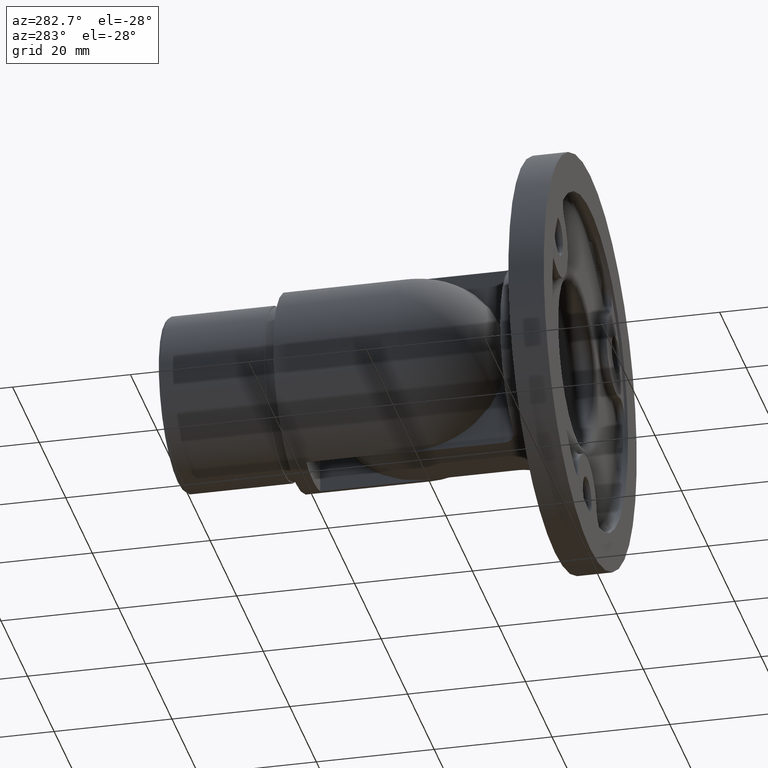
[diagram: clean part render]
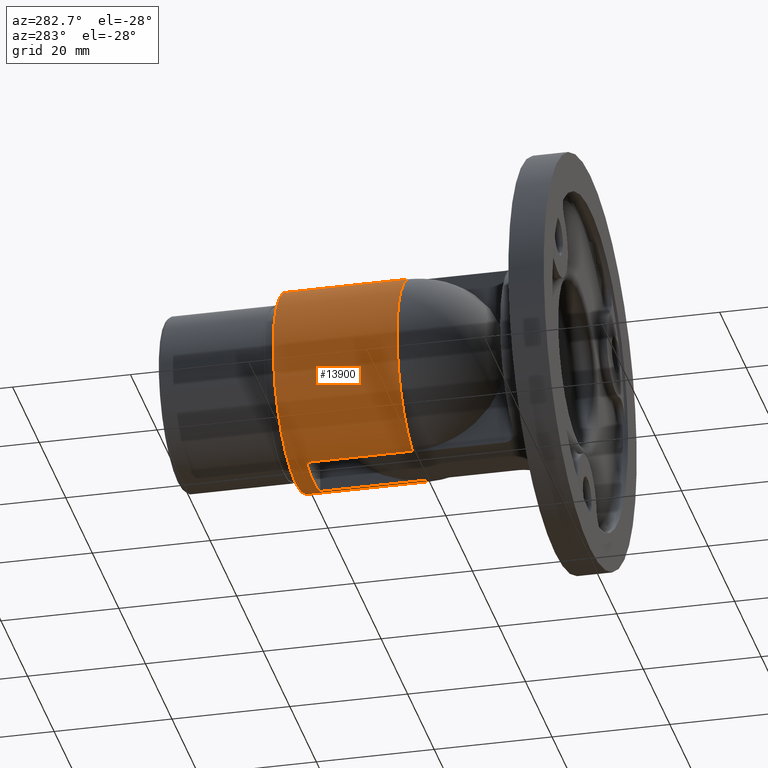
[diagram: same view with one face highlighted and labeled with its STEP entity id]
A machine part, auxiliary view. The second image highlights one B-rep face of the part: STEP entity #13900.
In plain terms, the highlighted cylindrical surface (bore or boss wall) has radius 16.85 mm, axis along (-0, -1, -0).
Its self-contained STEP definition (entity closure, byte-faithful):
#232 = CARTESIAN_POINT ( 'NONE',  ( -5.249999999999995559, 34.85000000000000853, 16.01124604770035376 ) ) ;
#285 = AXIS2_PLACEMENT_3D ( 'NONE', #11756, #676, #9355 ) ;
#428 = CARTESIAN_POINT ( 'NONE',  ( 0.000000000000000000, 37.85000000000000853, -16.85000000000000142 ) ) ;
#444 = CARTESIAN_POINT ( 'NONE',  ( -5.249999999999994671, 16.85000000000000853, -16.01124604770035376 ) ) ;
#594 = CARTESIAN_POINT ( 'NONE',  ( 0.000000000000000000, 16.85000000000000853, 0.000000000000000000 ) ) ;
#676 = DIRECTION ( 'NONE',  ( -0.000000000000000000, -1.000000000000000000, -0.000000000000000000 ) ) ;
#1087 = VECTOR ( 'NONE', #5763, 1000.000000000000000 ) ;
#1101 = CARTESIAN_POINT ( 'NONE',  ( 5.249999999999996447, 34.85000000000000853, -16.01124604770035376 ) ) ;
#1102 = CARTESIAN_POINT ( 'NONE',  ( -5.249999999999995559, 34.85000000000000853, -16.01124604770035376 ) ) ;
#1167 = EDGE_CURVE ( 'NONE', #4631, #8340, #12813, .T. ) ;
#1208 = CARTESIAN_POINT ( 'NONE',  ( 16.63825640477658396, 24.65874508683922528, 2.675813445187656292 ) ) ;
#1268 = CARTESIAN_POINT ( 'NONE',  ( 16.08063945266034267, 23.38845225511019876, 5.038138055029641293 ) ) ;
#1324 = DIRECTION ( 'NONE',  ( -0.000000000000000000, -1.000000000000000000, -0.000000000000000000 ) ) ;
#1379 = CARTESIAN_POINT ( 'NONE',  ( 14.72369132227998634, 17.95197662653187720, 8.194570433765496986 ) ) ;
#1845 = EDGE_CURVE ( 'NONE', #11782, #11782, #2283, .T. ) ;
#2072 = CARTESIAN_POINT ( 'NONE',  ( 5.250000000000005329, 16.85000000000000853, -16.01124604770035020 ) ) ;
#2178 = LINE ( 'NONE', #6695, #4668 ) ;
#2269 = CARTESIAN_POINT ( 'NONE',  ( 16.85019765389074209, 25.10040369344974565, 0.2620014252942243216 ) ) ;
#2283 = CIRCLE ( 'NONE', #12553, 16.85000000000000142 ) ;
#2323 = CARTESIAN_POINT ( 'NONE',  ( 15.73731336658605251, 22.49210085761979627, -6.024878744605496550 ) ) ;
#2385 = ORIENTED_EDGE ( 'NONE', *, *, #1167, .F. ) ;
#2402 = ORIENTED_EDGE ( 'NONE', *, *, #8728, .F. ) ;
#2513 = DIRECTION ( 'NONE',  ( -0.000000000000000000, -1.000000000000000000, -0.000000000000000000 ) ) ;
#2644 = CARTESIAN_POINT ( 'NONE',  ( 16.44987921291543742, 24.25089233588738225, 3.685718501326534113 ) ) ;
#2661 = VERTEX_POINT ( 'NONE', #6875 ) ;
#3033 = FACE_OUTER_BOUND ( 'NONE', #7233, .T. ) ;
#3232 = AXIS2_PLACEMENT_3D ( 'NONE', #12104, #3928, #5272 ) ;
#3469 = ORIENTED_EDGE ( 'NONE', *, *, #14627, .F. ) ;
#3561 = CARTESIAN_POINT ( 'NONE',  ( 16.71144158363810206, 24.81349936235876186, -2.172512524972608716 ) ) ;
#3723 = CARTESIAN_POINT ( 'NONE',  ( 15.66902844082934365, 22.30708277299745035, 6.209943191397796269 ) ) ;
#3806 = ORIENTED_EDGE ( 'NONE', *, *, #15373, .F. ) ;
#3836 = CARTESIAN_POINT ( 'NONE',  ( 16.59458062862043093, 24.56548939159121758, 2.933859319709750224 ) ) ;
#3872 = CARTESIAN_POINT ( 'NONE',  ( 0.000000000000000000, 34.85000000000000853, 0.000000000000000000 ) ) ;
#3928 = DIRECTION ( 'NONE',  ( -0.000000000000000000, -1.000000000000000000, -0.000000000000000000 ) ) ;
#4143 = CIRCLE ( 'NONE', #14296, 16.85000000000000497 ) ;
#4223 = DIRECTION ( 'NONE',  ( -0.000000000000000000, -1.000000000000000000, -0.000000000000000000 ) ) ;
#4333 = DIRECTION ( 'NONE',  ( -0.000000000000000000, -1.000000000000000000, -0.000000000000000000 ) ) ;
#4622 = ORIENTED_EDGE ( 'NONE', *, *, #15389, .F. ) ;
#4631 = VERTEX_POINT ( 'NONE', #9205 ) ;
#4668 = VECTOR ( 'NONE', #4333, 1000.000000000000000 ) ;
#4693 = EDGE_CURVE ( 'NONE', #9558, #4631, #12012, .T. ) ;
#4723 = CARTESIAN_POINT ( 'NONE',  ( 16.81707660874950250, 25.03258076621293071, 1.087967247931678427 ) ) ;
#4782 = CARTESIAN_POINT ( 'NONE',  ( 15.66787196674611060, 22.29605969592472903, -6.202703465840974317 ) ) ;
#4835 = CARTESIAN_POINT ( 'NONE',  ( 16.63524338477342823, 24.65233072623737343, -2.694581229776433773 ) ) ;
#4842 = VERTEX_POINT ( 'NONE', #1102 ) ;
#4888 = CARTESIAN_POINT ( 'NONE',  ( 15.26207138894459803, 21.00340800926582574, -7.148309923767482310 ) ) ;
#4946 = CARTESIAN_POINT ( 'NONE',  ( 14.93495857248702841, 19.54407783404358057, 7.802415222288571428 ) ) ;
#5065 = CARTESIAN_POINT ( 'NONE',  ( 15.33008752875655034, 21.23139623303515933, 6.995549522746566495 ) ) ;
#5118 = CARTESIAN_POINT ( 'NONE',  ( 14.81350262179997479, 18.76093602953749695, 8.030350724648153360 ) ) ;
#5255 = VERTEX_POINT ( 'NONE', #12601 ) ;
#5272 = DIRECTION ( 'NONE',  ( 0.000000000000000000, 0.000000000000000000, -1.000000000000000000 ) ) ;
#5512 = CARTESIAN_POINT ( 'NONE',  ( 0.000000000000000000, 34.85000000000000853, 0.000000000000000000 ) ) ;
#5763 = DIRECTION ( 'NONE',  ( -0.000000000000000000, -1.000000000000000000, -0.000000000000000000 ) ) ;
#5873 = CARTESIAN_POINT ( 'NONE',  ( -5.249999999999995559, 16.85000000000000853, 16.01124604770035376 ) ) ;
#5902 = CARTESIAN_POINT ( 'NONE',  ( 14.69217478796111109, 16.85000000000000853, -8.250000000000000000 ) ) ;
#5964 = ORIENTED_EDGE ( 'NONE', *, *, #4693, .F. ) ;
#5977 = EDGE_CURVE ( 'NONE', #8340, #8208, #15622, .T. ) ;
#6004 = CARTESIAN_POINT ( 'NONE',  ( 16.14508363682497816, 23.54493296998159479, -4.828273553303898069 ) ) ;
#6122 = CARTESIAN_POINT ( 'NONE',  ( 16.07867756871405263, 23.38360857296168405, -5.044338064856102477 ) ) ;
#6157 = DIRECTION ( 'NONE',  ( 0.000000000000000000, -1.000000000000000000, -0.000000000000000000 ) ) ;
#6175 = CARTESIAN_POINT ( 'NONE',  ( 14.98277987353110063, 19.79648315054605234, 7.710529492109101213 ) ) ;
#6187 = ORIENTED_EDGE ( 'NONE', *, *, #13869, .F. ) ;
#6343 = CARTESIAN_POINT ( 'NONE',  ( 15.14444985502283281, 20.53048889213629735, 7.388361615698396001 ) ) ;
#6695 = CARTESIAN_POINT ( 'NONE',  ( 5.250000000000005329, 1.306642503425860023E-15, -16.01124604770035020 ) ) ;
#6875 = CARTESIAN_POINT ( 'NONE',  ( 14.69217478796111109, 16.85000000000000853, -8.250000000000000000 ) ) ;
#6991 = ORIENTED_EDGE ( 'NONE', *, *, #14678, .F. ) ;
#7117 = VERTEX_POINT ( 'NONE', #444 ) ;
#7233 = EDGE_LOOP ( 'NONE', ( #3469, #3806, #2402, #4622, #6187, #6991, #9712, #2385, #5964, #11172 ) ) ;
#7238 = CARTESIAN_POINT ( 'NONE',  ( 16.84959096598405992, 25.09916457829444170, -0.5612549930229421280 ) ) ;
#7293 = ORIENTED_EDGE ( 'NONE', *, *, #1845, .T. ) ;
#7295 = CARTESIAN_POINT ( 'NONE',  ( 16.59190388204816458, 24.55972217737271635, -2.948700927901514390 ) ) ;
#7402 = CARTESIAN_POINT ( 'NONE',  ( 15.26557367161051992, 21.00082842300255592, 7.134739606478868623 ) ) ;
#7569 = CARTESIAN_POINT ( 'NONE',  ( 14.69217478796111109, 16.85000000000000853, 8.250000000000000000 ) ) ;
#8195 = VECTOR ( 'NONE', #14824, 1000.000000000000000 ) ;
#8208 = VERTEX_POINT ( 'NONE', #5873 ) ;
#8340 = VERTEX_POINT ( 'NONE', #232 ) ;
#8511 = CARTESIAN_POINT ( 'NONE',  ( 14.92862976339007020, 19.54063075855091114, -7.817471222669130526 ) ) ;
#8566 = CARTESIAN_POINT ( 'NONE',  ( 16.71360502869672615, 24.81803091707250175, 2.155681036067158551 ) ) ;
#8725 = EDGE_LOOP ( 'NONE', ( #7293 ) ) ;
#8728 = EDGE_CURVE ( 'NONE', #9464, #12466, #2178, .T. ) ;
#8757 = CARTESIAN_POINT ( 'NONE',  ( -5.249999999999995559, 0.000000000000000000, -16.01124604770035376 ) ) ;
#8769 = CARTESIAN_POINT ( 'NONE',  ( 16.14682481448293316, 23.54911899032976663, 4.822418188355833912 ) ) ;
#8796 = LINE ( 'NONE', #8757, #8195 ) ;
#9166 = DIRECTION ( 'NONE',  ( 0.000000000000000000, 0.000000000000000000, -1.000000000000000000 ) ) ;
#9205 = CARTESIAN_POINT ( 'NONE',  ( 5.249999999999996447, 34.85000000000000853, 16.01124604770035020 ) ) ;
#9262 = DIRECTION ( 'NONE',  ( 0.000000000000000000, -1.000000000000000000, -0.000000000000000000 ) ) ;
#9319 = CIRCLE ( 'NONE', #14092, 16.85000000000000497 ) ;
#9355 = DIRECTION ( 'NONE',  ( 0.000000000000000000, 0.000000000000000000, -1.000000000000000000 ) ) ;
#9464 = VERTEX_POINT ( 'NONE', #1101 ) ;
#9558 = VERTEX_POINT ( 'NONE', #10075 ) ;
#9628 = CARTESIAN_POINT ( 'NONE',  ( 16.44837418353471037, 24.24751172801791199, -3.691603051759053233 ) ) ;
#9712 = ORIENTED_EDGE ( 'NONE', *, *, #5977, .F. ) ;
#9900 = DIRECTION ( 'NONE',  ( 0.000000000000000000, 0.000000000000000000, -1.000000000000000000 ) ) ;
#10053 = DIRECTION ( 'NONE',  ( 0.000000000000000000, 0.000000000000000000, 1.000000000000000000 ) ) ;
#10073 = CARTESIAN_POINT ( 'NONE',  ( 0.000000000000000000, 16.85000000000000853, 0.000000000000000000 ) ) ;
#10075 = CARTESIAN_POINT ( 'NONE',  ( 5.250000000000000888, 16.85000000000000853, 16.01124604770035020 ) ) ;
#10803 = CARTESIAN_POINT ( 'NONE',  ( 14.84114353536187991, 19.01329623064460250, -7.979846308818189904 ) ) ;
#10847 = CARTESIAN_POINT ( 'NONE',  ( 16.84357805807328745, 25.08690986532304024, 0.5400153689607205543 ) ) ;
#10903 = CARTESIAN_POINT ( 'NONE',  ( 14.69217478796111642, 17.40466657375751325, -8.250000000000000000 ) ) ;
#11063 = CIRCLE ( 'NONE', #11653, 16.85000000000000497 ) ;
#11066 = CARTESIAN_POINT ( 'NONE',  ( 15.87639477653013387, 22.86915576540347317, 5.648223223257337722 ) ) ;
#11122 = CARTESIAN_POINT ( 'NONE',  ( 14.69217478796111287, 17.40499698017315566, 8.250000000000001776 ) ) ;
#11172 = ORIENTED_EDGE ( 'NONE', *, *, #13211, .F. ) ;
#11285 = CARTESIAN_POINT ( 'NONE',  ( 15.08752438641074889, 20.28968927787120791, 7.503503560126691951 ) ) ;
#11611 = CARTESIAN_POINT ( 'NONE',  ( 5.250000000000005329, 1.306642503425860023E-15, 16.01124604770035020 ) ) ;
#11637 = VECTOR ( 'NONE', #15486, 1000.000000000000000 ) ;
#11653 = AXIS2_PLACEMENT_3D ( 'NONE', #10073, #1324, #9900 ) ;
#11714 = DIRECTION ( 'NONE',  ( 1.776356839400250465E-15, 0.000000000000000000, 1.000000000000000000 ) ) ;
#11756 = CARTESIAN_POINT ( 'NONE',  ( 0.000000000000000000, 16.85000000000000853, 0.000000000000000000 ) ) ;
#11782 = VERTEX_POINT ( 'NONE', #428 ) ;
#11876 = CARTESIAN_POINT ( 'NONE',  ( -5.249999999999995559, 0.000000000000000000, 16.01124604770035376 ) ) ;
#12012 = LINE ( 'NONE', #11611, #11637 ) ;
#12022 = CYLINDRICAL_SURFACE ( 'NONE', #3232, 16.85000000000000497 ) ;
#12104 = CARTESIAN_POINT ( 'NONE',  ( 0.000000000000000000, 0.000000000000000000, 0.000000000000000000 ) ) ;
#12115 = CARTESIAN_POINT ( 'NONE',  ( 15.13918043811690595, 20.53378767090964985, -7.401490295323926993 ) ) ;
#12163 = CARTESIAN_POINT ( 'NONE',  ( 15.46121840739244924, 21.67019381287090951, -6.700738005680990206 ) ) ;
#12218 = CARTESIAN_POINT ( 'NONE',  ( 15.87537261602768979, 22.86645458614522042, -5.651083098628557622 ) ) ;
#12266 = CARTESIAN_POINT ( 'NONE',  ( 15.94524760969762411, 23.04800887547500565, 5.451502447346642910 ) ) ;
#12375 = CARTESIAN_POINT ( 'NONE',  ( 14.85038835546344771, 19.02694789144472054, 7.962200484465317807 ) ) ;
#12466 = VERTEX_POINT ( 'NONE', #2072 ) ;
#12553 = AXIS2_PLACEMENT_3D ( 'NONE', #13624, #2513, #13459 ) ;
#12601 = CARTESIAN_POINT ( 'NONE',  ( 14.69217478796111109, 16.85000000000000853, 8.250000000000000000 ) ) ;
#12660 = B_SPLINE_CURVE_WITH_KNOTS ( 'NONE', 3,
 ( #5902, #10903, #14672, #10803, #8511, #12115, #4888, #12163, #14511, #4782, #2323, #12218, #15752, #6122, #6004, #14465, #9628, #7295, #4835, #3561, #15636, #15865, #7238, #2269, #10847, #4723, #13325, #15812, #8566, #1208, #3836, #2644, #14897, #8769, #1268, #12266, #11066, #3723, #14737, #5065, #7402, #6343, #11285, #6175, #4946, #12375, #5118, #1379, #11122, #7569 ),
 .UNSPECIFIED., .F., .F.,
 ( 4, 2, 2, 2, 2, 2, 2, 2, 2, 2, 2, 2, 2, 2, 2, 2, 2, 2, 2, 2, 2, 2, 2, 2, 4 ),
 ( 0.000000000000000000, 0.001637828408831442685, 0.003275656817662885370, 0.004913485226494328055, 0.005732399430910053301, 0.006551313635325779414, 0.007370227839741504659, 0.008189142044157229905, 0.009826970452988682131, 0.01064588465740440651, 0.01146479886182013262, 0.01310262727065158485, 0.01392154147506731096, 0.01474045567948303707, 0.01555936988389876492, 0.01637828408831449103, 0.01801611249714594326, 0.01883502670156166417, 0.01965394090597738508, 0.02129176931480883384, 0.02211068351922455474, 0.02292959772364027565, 0.02374851192805600003, 0.02456742613247172094, 0.02620525454130316276 ),
 .UNSPECIFIED. ) ;
#12813 = CIRCLE ( 'NONE', #14478, 16.85000000000000497 ) ;
#12957 = FACE_OUTER_BOUND ( 'NONE', #8725, .T. ) ;
#13211 = EDGE_CURVE ( 'NONE', #5255, #9558, #15100, .T. ) ;
#13325 = CARTESIAN_POINT ( 'NONE',  ( 16.79730058516659597, 24.99196012958254087, 1.358349385680436727 ) ) ;
#13459 = DIRECTION ( 'NONE',  ( 0.000000000000000000, 0.000000000000000000, -1.000000000000000000 ) ) ;
#13624 = CARTESIAN_POINT ( 'NONE',  ( 0.000000000000000000, 37.85000000000000853, 0.000000000000000000 ) ) ;
#13869 = EDGE_CURVE ( 'NONE', #7117, #4842, #8796, .T. ) ;
#13900 = ADVANCED_FACE ( 'NONE', ( #3033, #12957 ), #12022, .T. ) ;
#14092 = AXIS2_PLACEMENT_3D ( 'NONE', #594, #4223, #9166 ) ;
#14296 = AXIS2_PLACEMENT_3D ( 'NONE', #5512, #9262, #11714 ) ;
#14465 = CARTESIAN_POINT ( 'NONE',  ( 16.33467248971763652, 23.99388778440912517, -4.161103127307800520 ) ) ;
#14478 = AXIS2_PLACEMENT_3D ( 'NONE', #3872, #6157, #10053 ) ;
#14511 = CARTESIAN_POINT ( 'NONE',  ( 15.52998717325846734, 21.88565843230055918, -6.540278331228088327 ) ) ;
#14627 = EDGE_CURVE ( 'NONE', #2661, #5255, #12660, .T. ) ;
#14672 = CARTESIAN_POINT ( 'NONE',  ( 14.72362379266295029, 17.94791016580505527, -8.194656244266889544 ) ) ;
#14678 = EDGE_CURVE ( 'NONE', #8208, #7117, #11063, .T. ) ;
#14737 = CARTESIAN_POINT ( 'NONE',  ( 15.52961268324930977, 21.89866985827045198, 6.546817315796190861 ) ) ;
#14824 = DIRECTION ( 'NONE',  ( 0.000000000000000000, 1.000000000000000000, 0.000000000000000000 ) ) ;
#14897 = CARTESIAN_POINT ( 'NONE',  ( 16.33569514374712739, 23.99618152983985908, 4.156950716872033880 ) ) ;
#15100 = CIRCLE ( 'NONE', #285, 16.85000000000000497 ) ;
#15373 = EDGE_CURVE ( 'NONE', #12466, #2661, #9319, .T. ) ;
#15389 = EDGE_CURVE ( 'NONE', #4842, #9464, #4143, .T. ) ;
#15486 = DIRECTION ( 'NONE',  ( 0.000000000000000000, 1.000000000000000000, 0.000000000000000000 ) ) ;
#15622 = LINE ( 'NONE', #11876, #1087 ) ;
#15636 = CARTESIAN_POINT ( 'NONE',  ( 16.74410259901467057, 24.88163889859382039, -1.905180476216289387 ) ) ;
#15752 = CARTESIAN_POINT ( 'NONE',  ( 15.94399454587039422, 23.04476639630220447, -5.455112903733486007 ) ) ;
#15812 = CARTESIAN_POINT ( 'NONE',  ( 16.74556580712604870, 24.88468617956311846, 1.892206595810190128 ) ) ;
#15865 = CARTESIAN_POINT ( 'NONE',  ( 16.82244540187154769, 25.04412445007097432, -1.102981719791079840 ) ) ;